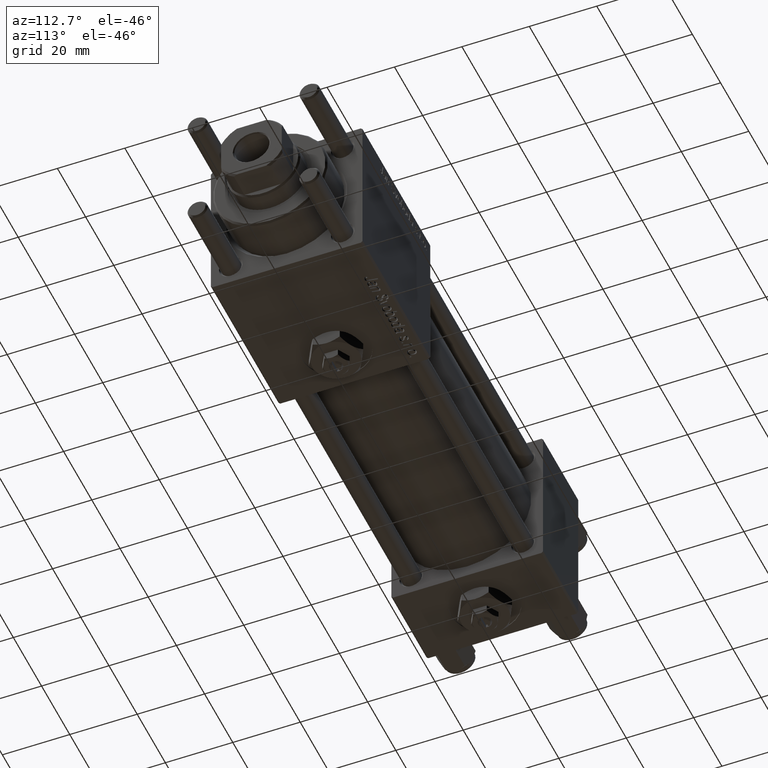
[diagram: clean part render]
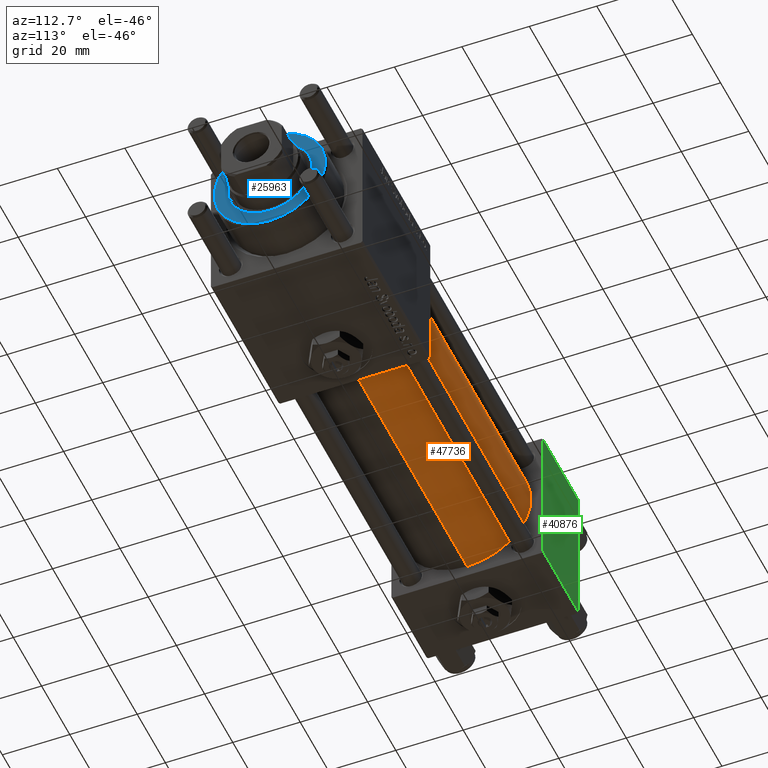
[diagram: same view with three faces highlighted in distinct colors, each labeled with its STEP entity id]
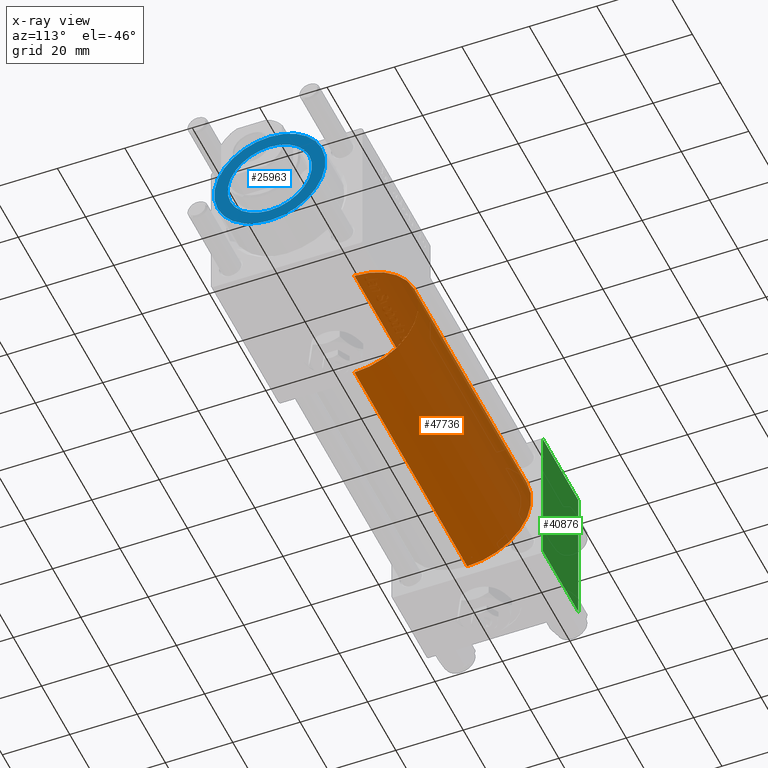
[diagram: x-ray of the same camera — body ghosted, the three highlighted faces saturated]
A machine part, auxiliary view with three faces highlighted in distinct colors.
The next image is the same camera in x-ray (body ghosted, the three faces saturated) — at least one of them is partly hidden behind the body in this view.
Their STEP definitions:

[orange] entity #47736 — the highlighted cylindrical surface (partial cylindrical patch) has radius 19 mm, axis along (-1, -0, -0).
#903 = CARTESIAN_POINT ( 'NONE',  ( 105.0000000000000142, -2.602085213965210642E-15, 0.000000000000000000 ) ) ;
#1426 = VERTEX_POINT ( 'NONE', #45166 ) ;
#2133 = VECTOR ( 'NONE', #16658, 1000.000000000000000 ) ;
#4560 = LINE ( 'NONE', #19382, #25684 ) ;
#5371 = CYLINDRICAL_SURFACE ( 'NONE', #29967, 19.00000000000000000 ) ;
#8531 = CARTESIAN_POINT ( 'NONE',  ( 105.0000000000000142, -2.752562955852396712E-16, -19.00000000000000000 ) ) ;
#14101 = DIRECTION ( 'NONE',  ( 1.000000000000000000, -0.000000000000000000, 0.000000000000000000 ) ) ;
#14551 = CIRCLE ( 'NONE', #48746, 19.00000000000000000 ) ;
#16658 = DIRECTION ( 'NONE',  ( -1.000000000000000000, -0.000000000000000000, -0.000000000000000000 ) ) ;
#17249 = EDGE_CURVE ( 'NONE', #1426, #42650, #4560, .T. ) ;
#17968 = CARTESIAN_POINT ( 'NONE',  ( 24.99999999999999289, -2.602085213965210642E-15, 0.000000000000000000 ) ) ;
#18757 = FACE_OUTER_BOUND ( 'NONE', #52242, .T. ) ;
#19048 = DIRECTION ( 'NONE',  ( 0.000000000000000000, 0.000000000000000000, 1.000000000000000000 ) ) ;
#19382 = CARTESIAN_POINT ( 'NONE',  ( 105.0000000000000142, -2.602085213965210642E-15, 19.00000000000000000 ) ) ;
#20206 = VERTEX_POINT ( 'NONE', #56520 ) ;
#25661 = ORIENTED_EDGE ( 'NONE', *, *, #28371, .F. ) ;
#25684 = VECTOR ( 'NONE', #37548, 1000.000000000000000 ) ;
#27576 = EDGE_CURVE ( 'NONE', #20206, #31734, #57136, .T. ) ;
#28371 = EDGE_CURVE ( 'NONE', #20206, #1426, #14551, .T. ) ;
#29967 = AXIS2_PLACEMENT_3D ( 'NONE', #903, #32447, #19048 ) ;
#31734 = VERTEX_POINT ( 'NONE', #54853 ) ;
#32250 = DIRECTION ( 'NONE',  ( 0.000000000000000000, 0.000000000000000000, 1.000000000000000000 ) ) ;
#32447 = DIRECTION ( 'NONE',  ( -1.000000000000000000, -0.000000000000000000, -0.000000000000000000 ) ) ;
#34855 = DIRECTION ( 'NONE',  ( 0.000000000000000000, 0.000000000000000000, -1.000000000000000000 ) ) ;
#35451 = DIRECTION ( 'NONE',  ( 1.000000000000000000, 0.000000000000000000, 0.000000000000000000 ) ) ;
#37548 = DIRECTION ( 'NONE',  ( -1.000000000000000000, -0.000000000000000000, -0.000000000000000000 ) ) ;
#37819 = AXIS2_PLACEMENT_3D ( 'NONE', #17968, #14101, #32250 ) ;
#38403 = ORIENTED_EDGE ( 'NONE', *, *, #17249, .F. ) ;
#39744 = CIRCLE ( 'NONE', #37819, 19.00000000000000000 ) ;
#41634 = ORIENTED_EDGE ( 'NONE', *, *, #55852, .T. ) ;
#42650 = VERTEX_POINT ( 'NONE', #56499 ) ;
#45166 = CARTESIAN_POINT ( 'NONE',  ( 105.0000000000000142, -2.602085213965210642E-15, 19.00000000000000000 ) ) ;
#47736 = ADVANCED_FACE ( 'NONE', ( #18757 ), #5371, .T. ) ;
#48677 = ORIENTED_EDGE ( 'NONE', *, *, #27576, .T. ) ;
#48746 = AXIS2_PLACEMENT_3D ( 'NONE', #52995, #35451, #34855 ) ;
#52242 = EDGE_LOOP ( 'NONE', ( #25661, #48677, #41634, #38403 ) ) ;
#52995 = CARTESIAN_POINT ( 'NONE',  ( 105.0000000000000142, -2.602085213965210642E-15, 0.000000000000000000 ) ) ;
#54853 = CARTESIAN_POINT ( 'NONE',  ( 24.99999999999999289, -2.752562955852396712E-16, -19.00000000000000000 ) ) ;
#55852 = EDGE_CURVE ( 'NONE', #31734, #42650, #39744, .T. ) ;
#56499 = CARTESIAN_POINT ( 'NONE',  ( 24.99999999999999289, -2.602085213965210642E-15, 19.00000000000000000 ) ) ;
#56520 = CARTESIAN_POINT ( 'NONE',  ( 105.0000000000000142, -2.752562955852396712E-16, -19.00000000000000000 ) ) ;
#57136 = LINE ( 'NONE', #8531, #2133 ) ;

[blue] entity #25963 — the highlighted planar face has unit normal (1, 0, 0).
#118 = DIRECTION ( 'NONE',  ( 0.000000000000000000, 0.000000000000000000, 1.000000000000000000 ) ) ;
#5472 = DIRECTION ( 'NONE',  ( 1.000000000000000000, 0.000000000000000000, 0.000000000000000000 ) ) ;
#5831 = ORIENTED_EDGE ( 'NONE', *, *, #49625, .F. ) ;
#6045 = CIRCLE ( 'NONE', #11724, 12.50000000000000000 ) ;
#7352 = DIRECTION ( 'NONE',  ( 1.000000000000000000, 0.000000000000000000, 0.000000000000000000 ) ) ;
#7573 = DIRECTION ( 'NONE',  ( 1.000000000000000000, 0.000000000000000000, -0.000000000000000000 ) ) ;
#7864 = CARTESIAN_POINT ( 'NONE',  ( 0.000000000000000000, 0.000000000000000000, 40.70000000000000284 ) ) ;
#9636 = CARTESIAN_POINT ( 'NONE',  ( 0.000000000000000000, 0.000000000000000000, 40.70000000000000284 ) ) ;
#10832 = VERTEX_POINT ( 'NONE', #54758 ) ;
#11724 = AXIS2_PLACEMENT_3D ( 'NONE', #52864, #21907, #7352 ) ;
#14953 = CARTESIAN_POINT ( 'NONE',  ( 0.000000000000000000, 0.000000000000000000, 40.70000000000000284 ) ) ;
#20934 = EDGE_CURVE ( 'NONE', #31653, #38020, #58135, .T. ) ;
#21907 = DIRECTION ( 'NONE',  ( 0.000000000000000000, 0.000000000000000000, 1.000000000000000000 ) ) ;
#22125 = EDGE_CURVE ( 'NONE', #38020, #31653, #52348, .T. ) ;
#25963 = ADVANCED_FACE ( 'NONE', ( #30471, #39996 ), #52793, .T. ) ;
#26229 = AXIS2_PLACEMENT_3D ( 'NONE', #14953, #118, #45647 ) ;
#27421 = CARTESIAN_POINT ( 'NONE',  ( 0.000000000000000000, 0.000000000000000000, 40.70000000000000284 ) ) ;
#28668 = AXIS2_PLACEMENT_3D ( 'NONE', #9636, #29454, #5472 ) ;
#29454 = DIRECTION ( 'NONE',  ( 0.000000000000000000, 0.000000000000000000, 1.000000000000000000 ) ) ;
#29663 = AXIS2_PLACEMENT_3D ( 'NONE', #7864, #48342, #7573 ) ;
#29846 = EDGE_CURVE ( 'NONE', #10832, #55793, #6045, .T. ) ;
#30471 = FACE_BOUND ( 'NONE', #39298, .T. ) ;
#31653 = VERTEX_POINT ( 'NONE', #49218 ) ;
#36626 = ORIENTED_EDGE ( 'NONE', *, *, #29846, .F. ) ;
#38020 = VERTEX_POINT ( 'NONE', #47282 ) ;
#39298 = EDGE_LOOP ( 'NONE', ( #36626, #5831 ) ) ;
#39996 = FACE_OUTER_BOUND ( 'NONE', #42422, .T. ) ;
#40759 = ORIENTED_EDGE ( 'NONE', *, *, #22125, .T. ) ;
#41907 = AXIS2_PLACEMENT_3D ( 'NONE', #27421, #54497, #47540 ) ;
#42057 = CARTESIAN_POINT ( 'NONE',  ( -12.50000000000000000, 1.530808498934191521E-15, 40.70000000000000284 ) ) ;
#42422 = EDGE_LOOP ( 'NONE', ( #43392, #40759 ) ) ;
#43392 = ORIENTED_EDGE ( 'NONE', *, *, #20934, .T. ) ;
#44299 = CIRCLE ( 'NONE', #26229, 12.50000000000000000 ) ;
#45647 = DIRECTION ( 'NONE',  ( 1.000000000000000000, 0.000000000000000000, 0.000000000000000000 ) ) ;
#47282 = CARTESIAN_POINT ( 'NONE',  ( 16.49999999999999289, 2.051283388571816493E-15, 40.70000000000000284 ) ) ;
#47540 = DIRECTION ( 'NONE',  ( 1.000000000000000000, 0.000000000000000000, 0.000000000000000000 ) ) ;
#48342 = DIRECTION ( 'NONE',  ( 0.000000000000000000, 0.000000000000000000, 1.000000000000000000 ) ) ;
#49218 = CARTESIAN_POINT ( 'NONE',  ( -16.49999999999999289, 0.000000000000000000, 40.70000000000000284 ) ) ;
#49625 = EDGE_CURVE ( 'NONE', #55793, #10832, #44299, .T. ) ;
#52348 = CIRCLE ( 'NONE', #41907, 16.49999999999999289 ) ;
#52793 = PLANE ( 'NONE',  #29663 ) ;
#52864 = CARTESIAN_POINT ( 'NONE',  ( 0.000000000000000000, 0.000000000000000000, 40.70000000000000284 ) ) ;
#54497 = DIRECTION ( 'NONE',  ( 0.000000000000000000, 0.000000000000000000, 1.000000000000000000 ) ) ;
#54758 = CARTESIAN_POINT ( 'NONE',  ( 12.50000000000000000, 0.000000000000000000, 40.70000000000000284 ) ) ;
#55793 = VERTEX_POINT ( 'NONE', #42057 ) ;
#58135 = CIRCLE ( 'NONE', #28668, 16.49999999999999289 ) ;

[green] entity #40876 — the highlighted planar face has unit normal (0, 1, 0).
#1642 = LINE ( 'NONE', #32620, #26794 ) ;
#3344 = VERTEX_POINT ( 'NONE', #40353 ) ;
#5755 = ORIENTED_EDGE ( 'NONE', *, *, #27123, .T. ) ;
#9586 = DIRECTION ( 'NONE',  ( 0.000000000000000000, -0.000000000000000000, 1.000000000000000000 ) ) ;
#10153 = FACE_OUTER_BOUND ( 'NONE', #50479, .T. ) ;
#11790 = ORIENTED_EDGE ( 'NONE', *, *, #17760, .T. ) ;
#12518 = CARTESIAN_POINT ( 'NONE',  ( 25.00000000000000000, 22.50000000000000000, -21.99999999999996803 ) ) ;
#16075 = ORIENTED_EDGE ( 'NONE', *, *, #21668, .F. ) ;
#16188 = LINE ( 'NONE', #20939, #55210 ) ;
#16435 = DIRECTION ( 'NONE',  ( 1.000000000000000000, 0.000000000000000000, 0.000000000000000000 ) ) ;
#17760 = EDGE_CURVE ( 'NONE', #40682, #45588, #16188, .T. ) ;
#20939 = CARTESIAN_POINT ( 'NONE',  ( 25.00000000000000000, 22.50000000000000000, -21.99999999999998224 ) ) ;
#21668 = EDGE_CURVE ( 'NONE', #3344, #45588, #1642, .T. ) ;
#22970 = CARTESIAN_POINT ( 'NONE',  ( 25.00000000000000000, 22.50000000000000000, 21.99999999999999645 ) ) ;
#23690 = DIRECTION ( 'NONE',  ( 0.000000000000000000, 0.000000000000000000, -1.000000000000000000 ) ) ;
#24181 = LINE ( 'NONE', #38160, #53455 ) ;
#26794 = VECTOR ( 'NONE', #23690, 1000.000000000000000 ) ;
#27123 = EDGE_CURVE ( 'NONE', #3344, #44210, #24181, .T. ) ;
#31603 = LINE ( 'NONE', #32485, #38674 ) ;
#31676 = AXIS2_PLACEMENT_3D ( 'NONE', #50655, #32499, #9586 ) ;
#32485 = CARTESIAN_POINT ( 'NONE',  ( 25.00000000000000000, 22.50000000000000000, 22.50000000000000355 ) ) ;
#32499 = DIRECTION ( 'NONE',  ( -0.000000000000000000, 1.000000000000000000, 0.000000000000000000 ) ) ;
#32620 = CARTESIAN_POINT ( 'NONE',  ( 0.000000000000000000, 22.50000000000000000, 22.50000000000000355 ) ) ;
#34475 = CARTESIAN_POINT ( 'NONE',  ( 0.000000000000000000, 22.50000000000000000, -21.99999999999996803 ) ) ;
#38160 = CARTESIAN_POINT ( 'NONE',  ( 25.00000000000000000, 22.50000000000000000, 21.99999999999999645 ) ) ;
#38674 = VECTOR ( 'NONE', #49470, 1000.000000000000000 ) ;
#40353 = CARTESIAN_POINT ( 'NONE',  ( 0.000000000000000000, 22.50000000000000000, 21.99999999999999645 ) ) ;
#40682 = VERTEX_POINT ( 'NONE', #12518 ) ;
#40876 = ADVANCED_FACE ( 'NONE', ( #10153 ), #41146, .T. ) ;
#41146 = PLANE ( 'NONE',  #31676 ) ;
#44210 = VERTEX_POINT ( 'NONE', #22970 ) ;
#45588 = VERTEX_POINT ( 'NONE', #34475 ) ;
#49470 = DIRECTION ( 'NONE',  ( 0.000000000000000000, 0.000000000000000000, -1.000000000000000000 ) ) ;
#50479 = EDGE_LOOP ( 'NONE', ( #52539, #11790, #16075, #5755 ) ) ;
#50655 = CARTESIAN_POINT ( 'NONE',  ( 25.00000000000000000, 22.50000000000000000, 22.50000000000000355 ) ) ;
#51788 = EDGE_CURVE ( 'NONE', #44210, #40682, #31603, .T. ) ;
#52539 = ORIENTED_EDGE ( 'NONE', *, *, #51788, .T. ) ;
#53455 = VECTOR ( 'NONE', #16435, 1000.000000000000000 ) ;
#55210 = VECTOR ( 'NONE', #56646, 1000.000000000000000 ) ;
#56646 = DIRECTION ( 'NONE',  ( -1.000000000000000000, 0.000000000000000000, 0.000000000000000000 ) ) ;